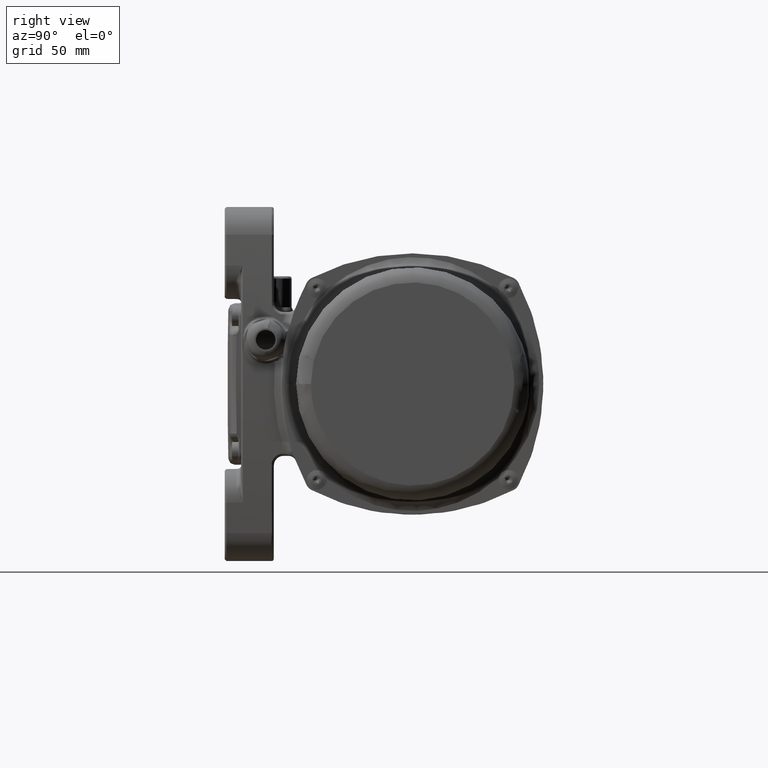
[diagram: clean part render]
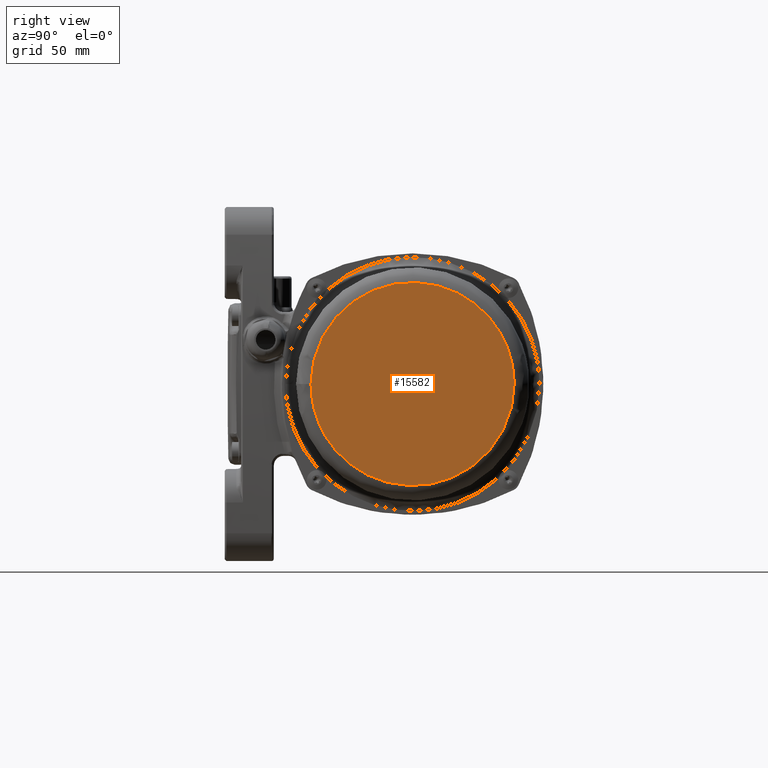
[diagram: same view with one face highlighted and labeled with its STEP entity id]
A machine part, right view. The second image highlights one B-rep face of the part: STEP entity #15582.
In plain terms, the highlighted planar face has unit normal (1, -0, -0).
Its self-contained STEP definition (entity closure, byte-faithful):
#730 = CARTESIAN_POINT ( 'NONE',  ( 170.0000000000000000, 177.1999999999999900, 6.454582945116450100E-013 ) ) ;
#1025 = CARTESIAN_POINT ( 'NONE',  ( 170.0000000000000000, 43.59999999999949700, 6.514468601622609900E-013 ) ) ;
#10103 = CARTESIAN_POINT ( 'NONE',  ( 170.0000000000003400, 177.2000000000007800, -124.4000000000006700 ) ) ;
#13166 =( BOUNDED_CURVE ( )  B_SPLINE_CURVE ( 3, ( #82277, #131695, #97382, #65124 ),
 .UNSPECIFIED., .F., .F. ) 
 B_SPLINE_CURVE_WITH_KNOTS ( ( 4, 4 ),
 ( 0.0000000000000000000, 1.000000000000000000 ),
 .UNSPECIFIED. ) 
 CURVE ( )  GEOMETRIC_REPRESENTATION_ITEM ( )  RATIONAL_B_SPLINE_CURVE ( ( 1.000000000000000000, 0.3333333333333324800, 0.3333333333333324800, 1.000000000000000000 ) ) 
 REPRESENTATION_ITEM ( '' )  );
#15582 = ADVANCED_FACE ( 'NONE', ( #67713 ), #110408, .T. ) ;
#30656 = ORIENTED_EDGE ( 'NONE', *, *, #69552, .F. ) ;
#33698 = VERTEX_POINT ( 'NONE', #730 ) ;
#34792 = CARTESIAN_POINT ( 'NONE',  ( 170.0000000000000000, 52.79999999999930100, 6.515745358100930400E-013 ) ) ;
#39960 = EDGE_LOOP ( 'NONE', ( #55222, #30656 ) ) ;
#44444 = CARTESIAN_POINT ( 'NONE',  ( 170.0000000000000000, 52.79999999999930100, 6.515745358100930400E-013 ) ) ;
#48664 = CARTESIAN_POINT ( 'NONE',  ( 170.0000000000000000, 52.79999999999937900, -124.4000000000007700 ) ) ;
#51127 = VERTEX_POINT ( 'NONE', #34792 ) ;
#55222 = ORIENTED_EDGE ( 'NONE', *, *, #75758, .F. ) ;
#65124 = CARTESIAN_POINT ( 'NONE',  ( 170.0000000000000000, 177.1999999999999900, 6.454582945116450100E-013 ) ) ;
#67713 = FACE_OUTER_BOUND ( 'NONE', #39960, .T. ) ;
#69552 = EDGE_CURVE ( 'NONE', #51127, #33698, #13166, .T. ) ;
#75758 = EDGE_CURVE ( 'NONE', #33698, #51127, #98214, .T. ) ;
#80344 = DIRECTION ( 'NONE',  ( 1.000000000000000000, -2.954653712665175000E-015, -1.095781623858763900E-016 ) ) ;
#82277 = CARTESIAN_POINT ( 'NONE',  ( 170.0000000000000000, 52.79999999999930100, 6.515745358100930400E-013 ) ) ;
#97382 = CARTESIAN_POINT ( 'NONE',  ( 170.0000000000003100, 177.2000000000003900, 124.4000000000022400 ) ) ;
#97564 = DIRECTION ( 'NONE',  ( -2.954653712665175000E-015, -1.000000000000000000, -1.387778780781411900E-017 ) ) ;
#98214 =( BOUNDED_CURVE ( )  B_SPLINE_CURVE ( 3, ( #112944, #10103, #48664, #44444 ),
 .UNSPECIFIED., .F., .F. ) 
 B_SPLINE_CURVE_WITH_KNOTS ( ( 4, 4 ),
 ( 0.0000000000000000000, 1.000000000000000000 ),
 .UNSPECIFIED. ) 
 CURVE ( )  GEOMETRIC_REPRESENTATION_ITEM ( )  RATIONAL_B_SPLINE_CURVE ( ( 1.000000000000000000, 0.3333333333333327600, 0.3333333333333327600, 1.000000000000000000 ) ) 
 REPRESENTATION_ITEM ( '' )  );
#110408 = PLANE ( 'NONE',  #130399 ) ;
#112944 = CARTESIAN_POINT ( 'NONE',  ( 170.0000000000000000, 177.1999999999999900, 6.454582945116450100E-013 ) ) ;
#130399 = AXIS2_PLACEMENT_3D ( 'NONE', #1025, #80344, #97564 ) ;
#131695 = CARTESIAN_POINT ( 'NONE',  ( 169.9999999999999700, 52.79999999999882500, 124.4000000000018500 ) ) ;